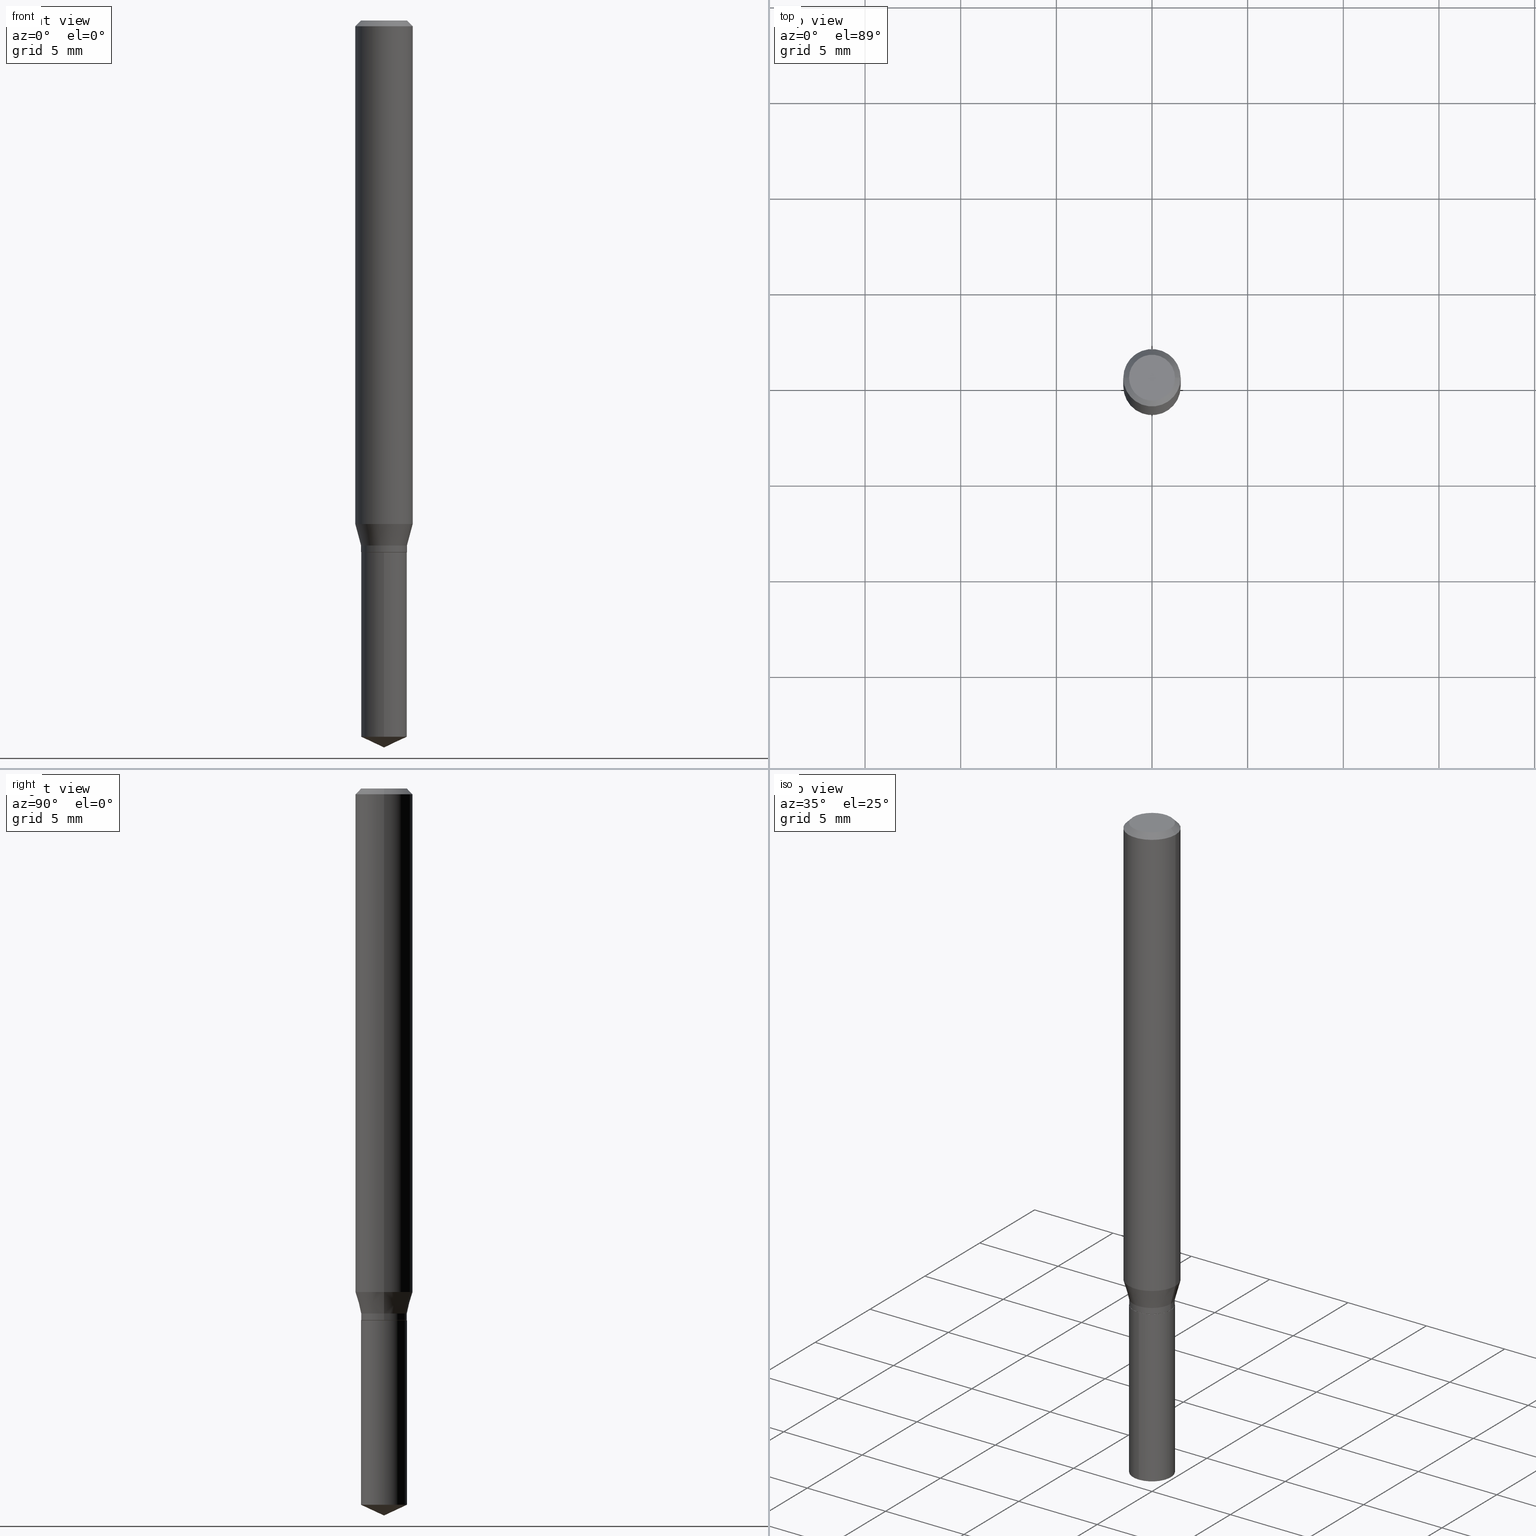
[diagram: canonical four-view strip — front | top / right | iso, engineering-drawing reading convention]
A machine part, canonical four-view strip (front | top / right | iso — engineering-drawing reading convention). The complete STEP part file that produces these views, byte-faithful:
ISO-10303-21;
HEADER;
FILE_DESCRIPTION (( 'STEP AP203' ),
    '1' );
FILE_NAME ('08202.STEP',
    '2024-04-24T13:46:53',
    ( '' ),
    ( '' ),
    'SwSTEP 2.0',
    'SolidWorks 2023',
    '' );
FILE_SCHEMA (( 'CONFIG_CONTROL_DESIGN' ));
ENDSEC;

DATA;
#1 = DIRECTION ( 'NONE',  ( 1.000000000000000000, -6.982962677686266711E-15, 0.000000000000000000 ) ) ;
#2 = CC_DESIGN_DATE_AND_TIME_ASSIGNMENT ( #258, #218, ( #117 ) ) ;
#3 = LOCAL_TIME ( 9, 46, 53.00000000000000000, #107 ) ;
#4 = DIRECTION ( 'NONE',  ( -2.445468806185136597E-29, 3.491481338843145583E-15, 1.000000000000000000 ) ) ;
#5 = EDGE_CURVE ( 'NONE', #385, #406, #39, .T. ) ;
#6 = CIRCLE ( 'NONE', #380, 0.05904999999999999832 ) ;
#7 = AXIS2_PLACEMENT_3D ( 'NONE', #478, #299, #243 ) ;
#8 = ORIENTED_EDGE ( 'NONE', *, *, #350, .T. ) ;
#9 = LINE ( 'NONE', #457, #37 ) ;
#10 = EDGE_CURVE ( 'NONE', #398, #271, #461, .T. ) ;
#11 = CC_DESIGN_PERSON_AND_ORGANIZATION_ASSIGNMENT ( #302, #443, ( #186 ) ) ;
#12 = CLOSED_SHELL ( 'NONE', ( #379, #303, #474, #259, #272, #81, #416, #339, #215, #161, #146, #181 ) ) ;
#13 = CIRCLE ( 'NONE', #347, 0.04724999999999999339 ) ;
#14 = DIMENSIONAL_EXPONENTS ( 1.000000000000000000, 0.000000000000000000, 0.000000000000000000, 0.000000000000000000, 0.000000000000000000, 0.000000000000000000, 0.000000000000000000 ) ;
#15 = EDGE_LOOP ( 'NONE', ( #438, #351, #191, #165 ) ) ;
#16 = DIRECTION ( 'NONE',  ( -2.445468806185136877E-29, 3.491481338843145188E-15, 1.000000000000000000 ) ) ;
#17 = VERTEX_POINT ( 'NONE', #250 ) ;
#18 = PERSON ( 'UNSPECIFIED', 'UNSPECIFIED', 'UNSPECIFIED', ('UNSPECIFIED'), ('UNSPECIFIED'), ('UNSPECIFIED') ) ;
#19 = DIRECTION ( 'NONE',  ( -0.2588190451025214611, 5.211531920934550253E-15, 0.9659258262890679791 ) ) ;
#20 = CARTESIAN_POINT ( 'NONE',  ( 0.000000000000000000, 0.000000000000000000, 0.000000000000000000 ) ) ;
#21 = EDGE_CURVE ( 'NONE', #390, #95, #255, .T. ) ;
#22 = CYLINDRICAL_SURFACE ( 'NONE', #301, 0.05905000000000006771 ) ;
#23 = DIRECTION ( 'NONE',  ( 2.445468806185136597E-29, -3.491481338843145583E-15, -1.000000000000000000 ) ) ;
#24 = DIRECTION ( 'NONE',  ( -2.445358326776455510E-29, 3.491639551644474585E-15, 1.000000000000000000 ) ) ;
#25 = CARTESIAN_POINT ( 'NONE',  ( 2.676565608369631794E-29, -3.821426325363822773E-15, -1.094499999999999806 ) ) ;
#26 = COORDINATED_UNIVERSAL_TIME_OFFSET ( 5, 0, .BEHIND. ) ;
#27 = EDGE_LOOP ( 'NONE', ( #424, #52 ) ) ;
#28 = CARTESIAN_POINT ( 'NONE',  ( 0.04724999999999997952, -4.101792276872925713E-15, -1.080300000000000038 ) ) ;
#29 = DIRECTION ( 'NONE',  ( 1.000000000000000000, -6.982962677686269077E-15, 0.000000000000000000 ) ) ;
#30 = LINE ( 'NONE', #283, #410 ) ;
#31 = CARTESIAN_POINT ( 'NONE',  ( 2.675342873966538993E-29, -3.819680584694400481E-15, -1.093999999999999861 ) ) ;
#32 = AXIS2_PLACEMENT_3D ( 'NONE', #389, #23, #119 ) ;
#33 = VECTOR ( 'NONE', #439, 39.37007874015748854 ) ;
#34 = ORIENTED_EDGE ( 'NONE', *, *, #103, .T. ) ;
#35 = CARTESIAN_POINT ( 'NONE',  ( -0.04674999999999999295, -3.489247596395975839E-15, -1.094499999999999806 ) ) ;
#36 = CARTESIAN_POINT ( 'NONE',  ( 0.04674999999999999295, -4.147879830545655774E-15, -1.094499999999999806 ) ) ;
#37 = VECTOR ( 'NONE', #151, 39.37007874015748143 ) ;
#38 = DIRECTION ( 'NONE',  ( -2.445358326776455790E-29, 3.491639551644474585E-15, 1.000000000000000000 ) ) ;
#39 = CIRCLE ( 'NONE', #104, 0.04724999999999998646 ) ;
#40 = AXIS2_PLACEMENT_3D ( 'NONE', #273, #312, #82 ) ;
#41 = CALENDAR_DATE ( 2024, 24, 4 ) ;
#42 = ORIENTED_EDGE ( 'NONE', *, *, #222, .T. ) ;
#43 = EDGE_CURVE ( 'NONE', #242, #265, #202, .T. ) ;
#44 = EDGE_CURVE ( 'NONE', #17, #242, #376, .T. ) ;
#45 = CARTESIAN_POINT ( 'NONE',  ( 2.676565608369631794E-29, -3.821426325363822773E-15, -1.094499999999999806 ) ) ;
#46 = DIRECTION ( 'NONE',  ( -6.982962677686265922E-15, -1.000000000000000000, 5.781688875479922944E-15 ) ) ;
#47 = EDGE_LOOP ( 'NONE', ( #486, #209, #100, #293 ) ) ;
#48 = LENGTH_MEASURE_WITH_UNIT ( LENGTH_MEASURE( 0.02539999999999999897 ), #392 );
#49 = DIRECTION ( 'NONE',  ( 2.445468806185136597E-29, -3.491481338843145583E-15, -1.000000000000000000 ) ) ;
#50 = VERTEX_POINT ( 'NONE', #345 ) ;
#51 = DIRECTION ( 'NONE',  ( -2.445468806185136597E-29, 3.491481338843145583E-15, 1.000000000000000000 ) ) ;
#52 = ORIENTED_EDGE ( 'NONE', *, *, #21, .F. ) ;
#53 = AXIS2_PLACEMENT_3D ( 'NONE', #356, #207, #29 ) ;
#54 = CC_DESIGN_APPROVAL ( #150, ( #185 ) ) ;
#55 = FACE_OUTER_BOUND ( 'NONE', #248, .T. ) ;
#56 = DIRECTION ( 'NONE',  ( 1.000000000000000000, -6.982962677686267499E-15, 0.000000000000000000 ) ) ;
#57 =( NAMED_UNIT ( * ) PLANE_ANGLE_UNIT ( ) SI_UNIT ( $, .RADIAN. ) );
#58 = CARTESIAN_POINT ( 'NONE',  ( 3.658500592690254185E-29, -5.223841933215297403E-15, -1.496099999999999985 ) ) ;
#59 = CARTESIAN_POINT ( 'NONE',  ( 2.676565608369631794E-29, -3.821426325363822773E-15, -1.094499999999999806 ) ) ;
#60 = EDGE_CURVE ( 'NONE', #390, #385, #268, .T. ) ;
#61 = ORIENTED_EDGE ( 'NONE', *, *, #407, .F. ) ;
#62 = AXIS2_PLACEMENT_3D ( 'NONE', #158, #156, #201 ) ;
#63 = AXIS2_PLACEMENT_3D ( 'NONE', #25, #402, #437 ) ;
#64 = CC_DESIGN_DATE_AND_TIME_ASSIGNMENT ( #145, #182, ( #99 ) ) ;
#65 = APPLICATION_PROTOCOL_DEFINITION ( 'international standard', 'config_control_design', 1994, #102 ) ;
#66 = PERSON_AND_ORGANIZATION ( #18, #247 ) ;
#67 = DIRECTION ( 'NONE',  ( 0.000000000000000000, 0.000000000000000000, 1.000000000000000000 ) ) ;
#68 = FACE_OUTER_BOUND ( 'NONE', #269, .T. ) ;
#69 = FACE_OUTER_BOUND ( 'NONE', #159, .T. ) ;
#70 = CYLINDRICAL_SURFACE ( 'NONE', #369, 0.04724999999999998646 ) ;
#71 = CONICAL_SURFACE ( 'NONE', #261, 84.42940631927483253, 1.134464013796318227 ) ;
#72 = CC_DESIGN_APPROVAL ( #297, ( #99 ) ) ;
#73 = MANIFOLD_SOLID_BREP ( 'Body-Move/Copy2[1]', #155 ) ;
#74 = ORIENTED_EDGE ( 'NONE', *, *, #85, .F. ) ;
#75 = DIRECTION ( 'NONE',  ( 1.000000000000000000, -6.982962677686266711E-15, 0.000000000000000000 ) ) ;
#76 = DIRECTION ( 'NONE',  ( 1.000000000000000000, -6.982962677686266711E-15, 4.876176775795935793E-29 ) ) ;
#77 = EDGE_CURVE ( 'NONE', #176, #354, #6, .T. ) ;
#78 = EDGE_LOOP ( 'NONE', ( #323, #490, #321, #318 ) ) ;
#79 = DIRECTION ( 'NONE',  ( -2.445468806185136597E-29, 3.491481338843145583E-15, 1.000000000000000000 ) ) ;
#80 = ORIENTED_EDGE ( 'NONE', *, *, #101, .F. ) ;
#81 = ADVANCED_FACE ( 'NONE', ( #69 ), #70, .T. ) ;
#82 = DIRECTION ( 'NONE',  ( 1.000000000000000000, -6.982962677686266711E-15, 0.000000000000000000 ) ) ;
#83 = DIRECTION ( 'NONE',  ( 2.438088387897960049E-29, -3.491481338843145188E-15, -1.000000000000000000 ) ) ;
#84 = ORIENTED_EDGE ( 'NONE', *, *, #419, .F. ) ;
#85 = EDGE_CURVE ( 'NONE', #95, #406, #189, .T. ) ;
#86 = DIRECTION ( 'NONE',  ( 1.000000000000000000, -6.982962677686266711E-15, 0.000000000000000000 ) ) ;
#87 = AXIS2_PLACEMENT_3D ( 'NONE', #162, #285, #317 ) ;
#88 = DIRECTION ( 'NONE',  ( -2.445358326776455510E-29, 3.491639551644474585E-15, 1.000000000000000000 ) ) ;
#89 = CARTESIAN_POINT ( 'NONE',  ( 2.675342873966538993E-29, -3.819680584694400481E-15, -1.093999999999999861 ) ) ;
#90 = DATE_AND_TIME ( #367, #441 ) ;
#91 = VERTEX_POINT ( 'NONE', #217 ) ;
#92 = CARTESIAN_POINT ( 'NONE',  ( 2.676565608369631794E-29, -3.821426325363822773E-15, -1.094499999999999806 ) ) ;
#93 = CARTESIAN_POINT ( 'NONE',  ( 2.676565608369631794E-29, -3.821426325363822773E-15, -1.094499999999999806 ) ) ;
#94 = EDGE_CURVE ( 'NONE', #240, #17, #13, .T. ) ;
#95 = VERTEX_POINT ( 'NONE', #36 ) ;
#96 = LINE ( 'NONE', #362, #164 ) ;
#97 = VERTEX_POINT ( 'NONE', #178 ) ;
#98 = CONICAL_SURFACE ( 'NONE', #32, 0.05904999999999999832, 0.7853981633974450594 ) ;
#99 = SECURITY_CLASSIFICATION ( '', '', #374 ) ;
#100 = ORIENTED_EDGE ( 'NONE', *, *, #85, .T. ) ;
#101 = EDGE_CURVE ( 'NONE', #91, #176, #180, .T. ) ;
#102 = APPLICATION_CONTEXT ( 'configuration controlled 3d designs of mechanical parts and assemblies' ) ;
#103 = EDGE_CURVE ( 'NONE', #97, #354, #452, .T. ) ;
#104 = AXIS2_PLACEMENT_3D ( 'NONE', #31, #370, #56 ) ;
#105 = CARTESIAN_POINT ( 'NONE',  ( 3.658744552762151624E-29, -5.223495605393188568E-15, -1.496099999999999985 ) ) ;
#106 = DIRECTION ( 'NONE',  ( -6.982962677686265922E-15, -1.000000000000000000, 2.890844437739961472E-15 ) ) ;
#107 = COORDINATED_UNIVERSAL_TIME_OFFSET ( 5, 0, .BEHIND. ) ;
#108 = CARTESIAN_POINT ( 'NONE',  ( -0.05905000000000006771, 4.195754854663396409E-16, -2.904631170795525045E-30 ) ) ;
#109 = APPROVAL_PERSON_ORGANIZATION ( #187, #297, #120 ) ;
#110 = DIRECTION ( 'NONE',  ( 2.445358326776454949E-29, -3.491639551644474585E-15, -1.000000000000000000 ) ) ;
#111 = ORIENTED_EDGE ( 'NONE', *, *, #130, .T. ) ;
#112 = CIRCLE ( 'NONE', #440, 0.04724999999999998646 ) ;
#113 = CC_DESIGN_APPROVAL ( #138, ( #117 ) ) ;
#114 = ORIENTED_EDGE ( 'NONE', *, *, #350, .F. ) ;
#115 = CARTESIAN_POINT ( 'NONE',  ( 0.04724999999999998646, -4.149625571215076488E-15, -1.093999999999999861 ) ) ;
#116 = DIRECTION ( 'NONE',  ( -2.445358326776455510E-29, 3.491639551644474585E-15, 1.000000000000000000 ) ) ;
#117 = PRODUCT_DEFINITION ( 'UNKNOWN', '', #185, #263 ) ;
#118 = CARTESIAN_POINT ( 'NONE',  ( 2.676565608369631794E-29, -3.821426325363822773E-15, -1.094499999999999806 ) ) ;
#119 = DIRECTION ( 'NONE',  ( -1.000000000000000000, 6.982962677686266711E-15, 0.000000000000000000 ) ) ;
#120 = APPROVAL_ROLE ( '' ) ;
#121 = FACE_OUTER_BOUND ( 'NONE', #211, .T. ) ;
#122 = VECTOR ( 'NONE', #471, 39.37007874015748143 ) ;
#123 = DIRECTION ( 'NONE',  ( -2.445468806185136597E-29, 3.491481338843145583E-15, 1.000000000000000000 ) ) ;
#124 = AXIS2_PLACEMENT_3D ( 'NONE', #236, #167, #257 ) ;
#125 = EDGE_LOOP ( 'NONE', ( #341, #175, #468, #482 ) ) ;
#126 = CARTESIAN_POINT ( 'NONE',  ( 2.641839951321803071E-29, -3.771847290352249705E-15, -1.080300000000000038 ) ) ;
#127 = DIRECTION ( 'NONE',  ( -2.445358326776455510E-29, 3.491639551644474585E-15, 1.000000000000000000 ) ) ;
#128 = ORIENTED_EDGE ( 'NONE', *, *, #103, .F. ) ;
#129 = CARTESIAN_POINT ( 'NONE',  ( 3.604742842283059142E-29, -5.146737346403543071E-15, -1.474066963152176557 ) ) ;
#130 = EDGE_CURVE ( 'NONE', #271, #91, #382, .T. ) ;
#131 = DIRECTION ( 'NONE',  ( -6.982962677686267499E-15, -1.000000000000000000, 3.520397390770433360E-15 ) ) ;
#132 = ORIENTED_EDGE ( 'NONE', *, *, #333, .T. ) ;
#133 = CARTESIAN_POINT ( 'NONE',  ( 0.000000000000000000, 0.000000000000000000, 0.000000000000000000 ) ) ;
#134 = DIRECTION ( 'NONE',  ( 1.000000000000000000, -6.982962677686266711E-15, 4.876176775795935793E-29 ) ) ;
#135 = ORIENTED_EDGE ( 'NONE', *, *, #94, .F. ) ;
#136 = CONICAL_SURFACE ( 'NONE', #226, 0.04724999999999997952, 0.2617993877991501850 ) ;
#137 = ORIENTED_EDGE ( 'NONE', *, *, #5, .T. ) ;
#138 = APPROVAL ( #375, 'UNSPECIFIED' ) ;
#139 = FACE_OUTER_BOUND ( 'NONE', #188, .T. ) ;
#140 = DIRECTION ( 'NONE',  ( -0.7071067811865173747, 7.493145998870245297E-15, 0.7071067811865776598 ) ) ;
#141 = VECTOR ( 'NONE', #393, 39.37007874015748143 ) ;
#142 = DIRECTION ( 'NONE',  ( 1.000000000000000000, -6.982962677686266711E-15, 4.876176775795936353E-29 ) ) ;
#143 = CC_DESIGN_PERSON_AND_ORGANIZATION_ASSIGNMENT ( #458, #208, ( #185 ) ) ;
#144 = PERSON_AND_ORGANIZATION ( #18, #247 ) ;
#145 = DATE_AND_TIME ( #41, #157 ) ;
#146 = ADVANCED_FACE ( 'NONE', ( #241 ), #234, .F. ) ;
#147 = CONICAL_SURFACE ( 'NONE', #266, 0.04674999999999999295, 0.7853981633974056464 ) ;
#148 = CONICAL_SURFACE ( 'NONE', #221, 0.04674999999999999295, 0.7853981633974056464 ) ;
#149 = CALENDAR_DATE ( 2024, 24, 4 ) ;
#150 = APPROVAL ( #445, 'UNSPECIFIED' ) ;
#151 = DIRECTION ( 'NONE',  ( 0.7071067811865452413, -7.319954787623248157E-15, -0.7071067811865497932 ) ) ;
#152 = CARTESIAN_POINT ( 'NONE',  ( 3.604742842283059142E-29, -5.146737346403543071E-15, -1.474066963152176557 ) ) ;
#153 = DATE_AND_TIME ( #275, #292 ) ;
#154 = ORIENTED_EDGE ( 'NONE', *, *, #10, .F. ) ;
#155 = CLOSED_SHELL ( 'NONE', ( #420, #465, #311, #233, #378 ) ) ;
#156 = DIRECTION ( 'NONE',  ( -2.445468806185136597E-29, 3.491481338843145583E-15, 1.000000000000000000 ) ) ;
#157 = LOCAL_TIME ( 9, 46, 53.00000000000000000, #418 ) ;
#158 = CARTESIAN_POINT ( 'NONE',  ( 8.265746106709734507E-48, -1.180129479067563789E-33, -3.380025165646692144E-19 ) ) ;
#159 = EDGE_LOOP ( 'NONE', ( #200, #137, #132, #154 ) ) ;
#160 = DIRECTION ( 'NONE',  ( -1.000000000000000000, 6.982962677686265922E-15, -4.876176775795935793E-29 ) ) ;
#161 = ADVANCED_FACE ( 'NONE', ( #237 ), #195, .F. ) ;
#162 = CARTESIAN_POINT ( 'NONE',  ( 2.676565608369631794E-29, -3.821426325363822773E-15, -1.094499999999999806 ) ) ;
#163 = AXIS2_PLACEMENT_3D ( 'NONE', #349, #83, #160 ) ;
#164 = VECTOR ( 'NONE', #170, 39.37007874015748143 ) ;
#165 = ORIENTED_EDGE ( 'NONE', *, *, #333, .F. ) ;
#166 = ORIENTED_EDGE ( 'NONE', *, *, #366, .T. ) ;
#167 = DIRECTION ( 'NONE',  ( -2.445468806185136597E-29, 3.491481338843145583E-15, 1.000000000000000000 ) ) ;
#168 = CARTESIAN_POINT ( 'NONE',  ( 0.000000000000000000, 0.000000000000000000, 0.000000000000000000 ) ) ;
#169 = EDGE_CURVE ( 'NONE', #385, #398, #401, .T. ) ;
#170 = DIRECTION ( 'NONE',  ( -6.328713451373382000E-15, -0.9063077870366501587, 0.4226182617406989972 ) ) ;
#171 = PERSON_AND_ORGANIZATION_ROLE ( 'creator' ) ;
#172 = ORIENTED_EDGE ( 'NONE', *, *, #10, .T. ) ;
#173 = CYLINDRICAL_SURFACE ( 'NONE', #377, 0.05905000000000006771 ) ;
#174 = APPROVAL_ROLE ( '' ) ;
#175 = ORIENTED_EDGE ( 'NONE', *, *, #469, .F. ) ;
#176 = VERTEX_POINT ( 'NONE', #355 ) ;
#177 = APPLICATION_PROTOCOL_DEFINITION ( 'international standard', 'config_control_design', 1994, #431 ) ;
#178 = CARTESIAN_POINT ( 'NONE',  ( -0.05905000000000013016, -3.198513253033061898E-15, -1.036261800470686723 ) ) ;
#179 = CIRCLE ( 'NONE', #267, 0.04724000000000000421 ) ;
#180 = LINE ( 'NONE', #444, #338 ) ;
#181 = ADVANCED_FACE ( 'NONE', ( #274 ), #147, .T. ) ;
#182 = DATE_TIME_ROLE ( 'classification_date' ) ;
#183 = CONICAL_SURFACE ( 'NONE', #473, 84.42940631927483253, 1.134464013796318227 ) ;
#184 = CARTESIAN_POINT ( 'NONE',  ( -0.04724999999999997952, -3.460032494876678049E-15, -1.080300000000000038 ) ) ;
#185 = PRODUCT_DEFINITION_FORMATION_WITH_SPECIFIED_SOURCE ( 'ANY', '', #186, .NOT_KNOWN. ) ;
#186 = PRODUCT ( '08202', '08202', '', ( #295 ) ) ;
#187 = PERSON_AND_ORGANIZATION ( #18, #247 ) ;
#188 = EDGE_LOOP ( 'NONE', ( #404, #235, #344, #488 ) ) ;
#189 = LINE ( 'NONE', #296, #192 ) ;
#190 = DIRECTION ( 'NONE',  ( -6.982962677686265922E-15, -1.000000000000000000, 5.781688875479922944E-15 ) ) ;
#191 = ORIENTED_EDGE ( 'NONE', *, *, #449, .F. ) ;
#192 = VECTOR ( 'NONE', #214, 39.37007874015748143 ) ;
#193 = APPROVAL_PERSON_ORGANIZATION ( #415, #150, #174 ) ;
#194 = ORIENTED_EDGE ( 'NONE', *, *, #44, .F. ) ;
#195 = PLANE ( 'NONE',  #163 ) ;
#196 = EDGE_CURVE ( 'NONE', #50, #427, #329, .T. ) ;
#197 = ORIENTED_EDGE ( 'NONE', *, *, #469, .T. ) ;
#198 = DIRECTION ( 'NONE',  ( -2.445358326776455510E-29, 3.491639551644474585E-15, 1.000000000000000000 ) ) ;
#199 = CARTESIAN_POINT ( 'NONE',  ( 0.04724999999999997952, -4.101792276872925713E-15, -1.080300000000000038 ) ) ;
#200 = ORIENTED_EDGE ( 'NONE', *, *, #169, .F. ) ;
#201 = DIRECTION ( 'NONE',  ( 1.000000000000000000, -6.982962677686266711E-15, 4.876185090822587894E-29 ) ) ;
#202 = CIRCLE ( 'NONE', #289, 0.04724999999999999339 ) ;
#203 = DIRECTION ( 'NONE',  ( 1.000000000000000000, -6.982962677686265133E-15, 0.000000000000000000 ) ) ;
#204 = LOCAL_TIME ( 9, 46, 53.00000000000000000, #456 ) ;
#205 = ORIENTED_EDGE ( 'NONE', *, *, #251, .T. ) ;
#206 = CARTESIAN_POINT ( 'NONE',  ( 2.676565608369631794E-29, -3.821426325363822773E-15, -1.094499999999999806 ) ) ;
#207 = DIRECTION ( 'NONE',  ( -2.445468806185136597E-29, 3.491481338843145583E-15, 1.000000000000000000 ) ) ;
#208 = PERSON_AND_ORGANIZATION_ROLE ( 'design_supplier' ) ;
#209 = ORIENTED_EDGE ( 'NONE', *, *, #21, .T. ) ;
#210 = AXIS2_PLACEMENT_3D ( 'NONE', #405, #49, #252 ) ;
#211 = EDGE_LOOP ( 'NONE', ( #466, #205, #114, #253 ) ) ;
#212 = DIRECTION ( 'NONE',  ( -2.445468806185136597E-29, 3.491481338843145583E-15, 1.000000000000000000 ) ) ;
#213 = PERSON_AND_ORGANIZATION_ROLE ( 'creator' ) ;
#214 = DIRECTION ( 'NONE',  ( 0.7071067811865173747, -2.468850131081940727E-15, 0.7071067811865776598 ) ) ;
#215 = ADVANCED_FACE ( 'NONE', ( #319 ), #98, .T. ) ;
#216 = PERSON_AND_ORGANIZATION ( #18, #247 ) ;
#217 = CARTESIAN_POINT ( 'NONE',  ( 0.05905000000000013016, -4.030432684616777494E-15, -1.036261800470686723 ) ) ;
#218 = DATE_TIME_ROLE ( 'creation_date' ) ;
#219 = VECTOR ( 'NONE', #19, 39.37007874015748143 ) ;
#220 = VECTOR ( 'NONE', #464, 39.37007874015748143 ) ;
#221 = AXIS2_PLACEMENT_3D ( 'NONE', #118, #79, #75 ) ;
#222 = EDGE_CURVE ( 'NONE', #17, #240, #316, .T. ) ;
#223 = DIRECTION ( 'NONE',  ( 1.000000000000000000, -6.982962677686269077E-15, 0.000000000000000000 ) ) ;
#224 = ORIENTED_EDGE ( 'NONE', *, *, #222, .F. ) ;
#225 = AXIS2_PLACEMENT_3D ( 'NONE', #126, #279, #282 ) ;
#226 = AXIS2_PLACEMENT_3D ( 'NONE', #230, #430, #223 ) ;
#227 = ORIENTED_EDGE ( 'NONE', *, *, #264, .T. ) ;
#228 = DIRECTION ( 'NONE',  ( -2.445468806185136597E-29, 3.491481338843145583E-15, 1.000000000000000000 ) ) ;
#229 = CC_DESIGN_PERSON_AND_ORGANIZATION_ASSIGNMENT ( #144, #305, ( #99 ) ) ;
#230 = CARTESIAN_POINT ( 'NONE',  ( 2.641839951321803071E-29, -3.771847290352249705E-15, -1.080300000000000038 ) ) ;
#231 = CYLINDRICAL_SURFACE ( 'NONE', #87, 0.04724999999999999339 ) ;
#232 = ORIENTED_EDGE ( 'NONE', *, *, #276, .T. ) ;
#233 = ADVANCED_FACE ( 'NONE', ( #55 ), #231, .T. ) ;
#234 = PLANE ( 'NONE',  #422 ) ;
#235 = ORIENTED_EDGE ( 'NONE', *, *, #44, .T. ) ;
#236 = CARTESIAN_POINT ( 'NONE',  ( 2.641839951321803071E-29, -3.771847290352249705E-15, -1.080300000000000038 ) ) ;
#237 = FACE_OUTER_BOUND ( 'NONE', #477, .T. ) ;
#238 = CC_DESIGN_PERSON_AND_ORGANIZATION_ASSIGNMENT ( #66, #213, ( #117 ) ) ;
#239 = LINE ( 'NONE', #294, #141 ) ;
#240 = VERTEX_POINT ( 'NONE', #352 ) ;
#241 = FACE_OUTER_BOUND ( 'NONE', #27, .T. ) ;
#242 = VERTEX_POINT ( 'NONE', #475 ) ;
#243 = DIRECTION ( 'NONE',  ( 1.000000000000000000, -6.982962677686265133E-15, 0.000000000000000000 ) ) ;
#244 = DIRECTION ( 'NONE',  ( -2.445468806185136597E-29, 3.491481338843145583E-15, 1.000000000000000000 ) ) ;
#245 = VECTOR ( 'NONE', #140, 39.37007874015748143 ) ;
#246 = PERSON_AND_ORGANIZATION ( #18, #247 ) ;
#247 = ORGANIZATION ( 'UNSPECIFIED', 'UNSPECIFIED', '' ) ;
#248 = EDGE_LOOP ( 'NONE', ( #194, #42, #232, #480 ) ) ;
#249 =( CONVERSION_BASED_UNIT ( 'INCH', #48 ) LENGTH_UNIT ( ) NAMED_UNIT ( #14 ) );
#250 = CARTESIAN_POINT ( 'NONE',  ( 3.357314426466831841E-16, 0.04724999999999483086, -1.474066963152176779 ) ) ;
#251 = EDGE_CURVE ( 'NONE', #398, #97, #310, .T. ) ;
#252 = DIRECTION ( 'NONE',  ( -1.000000000000000000, 6.982962677686266711E-15, 0.000000000000000000 ) ) ;
#253 = ORIENTED_EDGE ( 'NONE', *, *, #130, .F. ) ;
#254 = EDGE_CURVE ( 'NONE', #427, #354, #313, .T. ) ;
#255 = CIRCLE ( 'NONE', #298, 0.04674999999999999295 ) ;
#256 = DATE_AND_TIME ( #149, #204 ) ;
#257 = DIRECTION ( 'NONE',  ( 1.000000000000000000, -6.982962677686269077E-15, 0.000000000000000000 ) ) ;
#258 = DATE_AND_TIME ( #334, #3 ) ;
#259 = ADVANCED_FACE ( 'NONE', ( #121 ), #335, .T. ) ;
#260 = VECTOR ( 'NONE', #342, 39.37007874015748143 ) ;
#261 = AXIS2_PLACEMENT_3D ( 'NONE', #412, #198, #372 ) ;
#262 = EDGE_CURVE ( 'NONE', #406, #385, #112, .T. ) ;
#263 = DESIGN_CONTEXT ( 'detailed design', #102, 'design' ) ;
#264 = EDGE_CURVE ( 'NONE', #265, #242, #487, .T. ) ;
#265 = VERTEX_POINT ( 'NONE', #436 ) ;
#266 = AXIS2_PLACEMENT_3D ( 'NONE', #206, #426, #86 ) ;
#267 = AXIS2_PLACEMENT_3D ( 'NONE', #481, #4, #328 ) ;
#268 = LINE ( 'NONE', #35, #245 ) ;
#269 = EDGE_LOOP ( 'NONE', ( #8, #34, #332, #80 ) ) ;
#270 = DIRECTION ( 'NONE',  ( 1.000000000000000000, -6.982962677686265922E-15, 4.876176775795935793E-29 ) ) ;
#271 = VERTEX_POINT ( 'NONE', #28 ) ;
#272 = ADVANCED_FACE ( 'NONE', ( #483 ), #361, .T. ) ;
#273 = CARTESIAN_POINT ( 'NONE',  ( 2.888098660104664642E-31, -4.123439461173780879E-17, -0.01181000000000007565 ) ) ;
#274 = FACE_OUTER_BOUND ( 'NONE', #47, .T. ) ;
#275 = CALENDAR_DATE ( 2024, 24, 4 ) ;
#276 = EDGE_CURVE ( 'NONE', #240, #265, #239, .T. ) ;
#277 = VECTOR ( 'NONE', #16, 39.37007874015748143 ) ;
#278 =( GEOMETRIC_REPRESENTATION_CONTEXT ( 3 ) GLOBAL_UNCERTAINTY_ASSIGNED_CONTEXT ( ( #331 ) ) GLOBAL_UNIT_ASSIGNED_CONTEXT ( ( #249, #57, #413 ) ) REPRESENTATION_CONTEXT ( 'NONE', 'WORKASPACE' ) );
#279 = DIRECTION ( 'NONE',  ( -2.445468806185136597E-29, 3.491481338843145583E-15, 1.000000000000000000 ) ) ;
#280 = COORDINATED_UNIVERSAL_TIME_OFFSET ( 5, 0, .BEHIND. ) ;
#281 = ORIENTED_EDGE ( 'NONE', *, *, #360, .T. ) ;
#282 = DIRECTION ( 'NONE',  ( 1.000000000000000000, -6.982962677686269077E-15, 0.000000000000000000 ) ) ;
#283 = CARTESIAN_POINT ( 'NONE',  ( 0.04724999999999998646, -3.299449865206760074E-16, 2.303993526563579130E-30 ) ) ;
#284 = EDGE_LOOP ( 'NONE', ( #359, #166, #224 ) ) ;
#285 = DIRECTION ( 'NONE',  ( -2.445358326776455510E-29, 3.491639551644474585E-15, 1.000000000000000000 ) ) ;
#286 = DIRECTION ( 'NONE',  ( -2.445468806185136877E-29, 3.491481338843145188E-15, 1.000000000000000000 ) ) ;
#287 = ORIENTED_EDGE ( 'NONE', *, *, #419, .T. ) ;
#288 = DIRECTION ( 'NONE',  ( -2.445468806185136597E-29, 3.491481338843145583E-15, 1.000000000000000000 ) ) ;
#289 = AXIS2_PLACEMENT_3D ( 'NONE', #448, #450, #106 ) ;
#290 = CIRCLE ( 'NONE', #7, 0.05905000000000013016 ) ;
#291 = PLANE ( 'NONE',  #462 ) ;
#292 = LOCAL_TIME ( 9, 46, 53.00000000000000000, #280 ) ;
#293 = ORIENTED_EDGE ( 'NONE', *, *, #5, .F. ) ;
#294 = CARTESIAN_POINT ( 'NONE',  ( -3.299449865206492354E-16, -0.04725000000000382366, -1.094499999999999806 ) ) ;
#295 = MECHANICAL_CONTEXT ( 'NONE', #431, 'mechanical' ) ;
#296 = CARTESIAN_POINT ( 'NONE',  ( 0.04674999999999999295, -4.147879830545655774E-15, -1.094499999999999806 ) ) ;
#297 = APPROVAL ( #343, 'UNSPECIFIED' ) ;
#298 = AXIS2_PLACEMENT_3D ( 'NONE', #59, #212, #1 ) ;
#299 = DIRECTION ( 'NONE',  ( -2.445468806185136597E-29, 3.491481338843145583E-15, 1.000000000000000000 ) ) ;
#300 = DIRECTION ( 'NONE',  ( 1.000000000000000000, -6.982962677686266711E-15, 0.000000000000000000 ) ) ;
#301 = AXIS2_PLACEMENT_3D ( 'NONE', #133, #288, #142 ) ;
#302 = PERSON_AND_ORGANIZATION ( #18, #247 ) ;
#303 = ADVANCED_FACE ( 'NONE', ( #320 ), #454, .T. ) ;
#304 = DIRECTION ( 'NONE',  ( -2.445468806185136877E-29, 3.491481338843145188E-15, 1.000000000000000000 ) ) ;
#305 = PERSON_AND_ORGANIZATION_ROLE ( 'classification_officer' ) ;
#306 = VECTOR ( 'NONE', #38, 39.37007874015748143 ) ;
#307 = FACE_OUTER_BOUND ( 'NONE', #330, .T. ) ;
#308 = ORIENTED_EDGE ( 'NONE', *, *, #435, .T. ) ;
#309 = APPROVAL_PERSON_ORGANIZATION ( #216, #138, #365 ) ;
#310 = LINE ( 'NONE', #387, #219 ) ;
#311 = ADVANCED_FACE ( 'NONE', ( #476 ), #183, .T. ) ;
#312 = DIRECTION ( 'NONE',  ( -2.445468806185136597E-29, 3.491481338843145583E-15, 1.000000000000000000 ) ) ;
#313 = LINE ( 'NONE', #358, #122 ) ;
#314 = DIRECTION ( 'NONE',  ( 1.000000000000000000, -6.982962677686266711E-15, 4.876176775795936353E-29 ) ) ;
#315 = EDGE_LOOP ( 'NONE', ( #128, #287, #429, #61 ) ) ;
#316 = CIRCLE ( 'NONE', #357, 0.04724999999999999339 ) ;
#317 = DIRECTION ( 'NONE',  ( -6.982962677686265922E-15, -1.000000000000000000, 2.890844437739961472E-15 ) ) ;
#318 = ORIENTED_EDGE ( 'NONE', *, *, #254, .F. ) ;
#319 = FACE_OUTER_BOUND ( 'NONE', #125, .T. ) ;
#320 = FACE_OUTER_BOUND ( 'NONE', #78, .T. ) ;
#321 = ORIENTED_EDGE ( 'NONE', *, *, #77, .T. ) ;
#322 = CARTESIAN_POINT ( 'NONE',  ( -0.04724000000000000421, 3.504923541997677355E-16, -3.380025165670481712E-19 ) ) ;
#323 = ORIENTED_EDGE ( 'NONE', *, *, #196, .F. ) ;
#324 = DIRECTION ( 'NONE',  ( -2.445468806185136597E-29, 3.491481338843145583E-15, 1.000000000000000000 ) ) ;
#325 = CC_DESIGN_PERSON_AND_ORGANIZATION_ASSIGNMENT ( #246, #171, ( #185 ) ) ;
#326 = FACE_OUTER_BOUND ( 'NONE', #395, .T. ) ;
#327 = VERTEX_POINT ( 'NONE', #58 ) ;
#328 = DIRECTION ( 'NONE',  ( 1.000000000000000000, -6.982962677686266711E-15, 4.876185090822587894E-29 ) ) ;
#329 = CIRCLE ( 'NONE', #62, 0.04724000000000000421 ) ;
#330 = EDGE_LOOP ( 'NONE', ( #281, #409, #346, #74 ) ) ;
#331 = UNCERTAINTY_MEASURE_WITH_UNIT (LENGTH_MEASURE( 1.000000000000000082E-05 ), #249, 'distance_accuracy_value', 'NONE');
#332 = ORIENTED_EDGE ( 'NONE', *, *, #77, .F. ) ;
#333 = EDGE_CURVE ( 'NONE', #406, #271, #30, .T. ) ;
#334 = CALENDAR_DATE ( 2024, 24, 4 ) ;
#335 = CONICAL_SURFACE ( 'NONE', #225, 0.04724999999999997952, 0.2617993877991501850 ) ;
#336 = FACE_OUTER_BOUND ( 'NONE', #403, .T. ) ;
#337 = CIRCLE ( 'NONE', #63, 0.04674999999999999295 ) ;
#338 = VECTOR ( 'NONE', #304, 39.37007874015748143 ) ;
#339 = ADVANCED_FACE ( 'NONE', ( #397 ), #173, .T. ) ;
#340 = AXIS2_PLACEMENT_3D ( 'NONE', #92, #88, #447 ) ;
#341 = ORIENTED_EDGE ( 'NONE', *, *, #386, .F. ) ;
#342 = DIRECTION ( 'NONE',  ( -2.445468806185136877E-29, 3.491481338843145188E-15, 1.000000000000000000 ) ) ;
#343 = APPROVAL_STATUS ( 'not_yet_approved' ) ;
#344 = ORIENTED_EDGE ( 'NONE', *, *, #264, .F. ) ;
#345 = CARTESIAN_POINT ( 'NONE',  ( 0.04724000000000000421, -3.852183633974369345E-16, -3.380025165621689721E-19 ) ) ;
#346 = ORIENTED_EDGE ( 'NONE', *, *, #262, .F. ) ;
#347 = AXIS2_PLACEMENT_3D ( 'NONE', #152, #373, #190 ) ;
#348 = CC_DESIGN_SECURITY_CLASSIFICATION ( #99, ( #185 ) ) ;
#349 = CARTESIAN_POINT ( 'NONE',  ( 4.132873053354867254E-48, -5.900647395337818946E-34, -1.690012582823346072E-19 ) ) ;
#350 = EDGE_CURVE ( 'NONE', #91, #97, #455, .T. ) ;
#351 = ORIENTED_EDGE ( 'NONE', *, *, #169, .T. ) ;
#352 = CARTESIAN_POINT ( 'NONE',  ( -3.299449865206398677E-16, -0.04725000000000512818, -1.474066963152176113 ) ) ;
#353 = CARTESIAN_POINT ( 'NONE',  ( -9.261532836068574158E-28, 1.322424553111868898E-13, 37.87397874015748300 ) ) ;
#354 = VERTEX_POINT ( 'NONE', #442 ) ;
#355 = CARTESIAN_POINT ( 'NONE',  ( 0.05904999999999999832, -4.535783407291118600E-16, -0.01181000000000007565 ) ) ;
#356 = CARTESIAN_POINT ( 'NONE',  ( 2.641839951321803071E-29, -3.771847290352249705E-15, -1.080300000000000038 ) ) ;
#357 = AXIS2_PLACEMENT_3D ( 'NONE', #129, #116, #46 ) ;
#358 = CARTESIAN_POINT ( 'NONE',  ( -0.05904999999999999832, 3.711095515056362547E-16, -0.01181000000000007565 ) ) ;
#359 = ORIENTED_EDGE ( 'NONE', *, *, #435, .F. ) ;
#360 = EDGE_CURVE ( 'NONE', #95, #390, #337, .T. ) ;
#361 = CYLINDRICAL_SURFACE ( 'NONE', #399, 0.04724999999999998646 ) ;
#362 = CARTESIAN_POINT ( 'NONE',  ( 3.658500592690254185E-29, -5.223841933215297403E-15, -1.496099999999999985 ) ) ;
#363 = ORIENTED_EDGE ( 'NONE', *, *, #196, .T. ) ;
#364 = LINE ( 'NONE', #105, #33 ) ;
#365 = APPROVAL_ROLE ( '' ) ;
#366 = EDGE_CURVE ( 'NONE', #327, #240, #96, .T. ) ;
#367 = CALENDAR_DATE ( 2024, 24, 4 ) ;
#368 = EDGE_LOOP ( 'NONE', ( #383, #172, #111, #84 ) ) ;
#369 = AXIS2_PLACEMENT_3D ( 'NONE', #460, #228, #76 ) ;
#370 = DIRECTION ( 'NONE',  ( -2.445468806185136597E-29, 3.491481338843145583E-15, 1.000000000000000000 ) ) ;
#371 = CARTESIAN_POINT ( 'NONE',  ( 3.357314426466740136E-16, 0.04724999999999617006, -1.094500000000000028 ) ) ;
#372 = DIRECTION ( 'NONE',  ( -6.982962677686267499E-15, -1.000000000000000000, 3.520397390770433360E-15 ) ) ;
#373 = DIRECTION ( 'NONE',  ( -2.445358326776455510E-29, 3.491639551644474585E-15, 1.000000000000000000 ) ) ;
#374 = SECURITY_CLASSIFICATION_LEVEL ( 'unclassified' ) ;
#375 = APPROVAL_STATUS ( 'not_yet_approved' ) ;
#376 = LINE ( 'NONE', #371, #306 ) ;
#377 = AXIS2_PLACEMENT_3D ( 'NONE', #20, #51, #314 ) ;
#378 = ADVANCED_FACE ( 'NONE', ( #326 ), #291, .F. ) ;
#379 = ADVANCED_FACE ( 'NONE', ( #307 ), #148, .T. ) ;
#380 = AXIS2_PLACEMENT_3D ( 'NONE', #421, #414, #300 ) ;
#381 = ORIENTED_EDGE ( 'NONE', *, *, #366, .F. ) ;
#382 = LINE ( 'NONE', #199, #220 ) ;
#383 = ORIENTED_EDGE ( 'NONE', *, *, #251, .F. ) ;
#384 = CARTESIAN_POINT ( 'NONE',  ( -0.04674999999999999295, -3.486598369221864243E-15, -1.094499999999999806 ) ) ;
#385 = VERTEX_POINT ( 'NONE', #425 ) ;
#386 = EDGE_CURVE ( 'NONE', #50, #176, #9, .T. ) ;
#387 = CARTESIAN_POINT ( 'NONE',  ( -0.04724999999999997952, -3.436115847705603055E-15, -1.080300000000000038 ) ) ;
#388 = AXIS2_PLACEMENT_3D ( 'NONE', #93, #24, #479 ) ;
#389 = CARTESIAN_POINT ( 'NONE',  ( 2.888098660104664642E-31, -4.123439461173780879E-17, -0.01181000000000007565 ) ) ;
#390 = VERTEX_POINT ( 'NONE', #384 ) ;
#391 = ADVANCED_BREP_SHAPE_REPRESENTATION ( '08202', ( #73, #408, #411 ), #278 ) ;
#392 =( LENGTH_UNIT ( ) NAMED_UNIT ( * ) SI_UNIT ( $, .METRE. ) );
#393 = DIRECTION ( 'NONE',  ( -2.445358326776455790E-29, 3.491639551644474585E-15, 1.000000000000000000 ) ) ;
#394 = SHAPE_DEFINITION_REPRESENTATION ( #417, #391 ) ;
#395 = EDGE_LOOP ( 'NONE', ( #227, #459 ) ) ;
#396 = CARTESIAN_POINT ( 'NONE',  ( -0.04724999999999998646, 3.357314426466472416E-16, -2.324196830145442465E-30 ) ) ;
#397 = FACE_OUTER_BOUND ( 'NONE', #315, .T. ) ;
#398 = VERTEX_POINT ( 'NONE', #184 ) ;
#399 = AXIS2_PLACEMENT_3D ( 'NONE', #168, #324, #134 ) ;
#400 = CIRCLE ( 'NONE', #40, 0.05904999999999999832 ) ;
#401 = LINE ( 'NONE', #396, #277 ) ;
#402 = DIRECTION ( 'NONE',  ( -2.445468806185136597E-29, 3.491481338843145583E-15, 1.000000000000000000 ) ) ;
#403 = EDGE_LOOP ( 'NONE', ( #381, #308, #135 ) ) ;
#404 = ORIENTED_EDGE ( 'NONE', *, *, #94, .T. ) ;
#405 = CARTESIAN_POINT ( 'NONE',  ( 2.888098660104664642E-31, -4.123439461173780879E-17, -0.01181000000000007565 ) ) ;
#406 = VERTEX_POINT ( 'NONE', #115 ) ;
#407 = EDGE_CURVE ( 'NONE', #354, #176, #400, .T. ) ;
#408 = MANIFOLD_SOLID_BREP ( 'Body-Move/Copy2[2]', #12 ) ;
#409 = ORIENTED_EDGE ( 'NONE', *, *, #60, .T. ) ;
#410 = VECTOR ( 'NONE', #286, 39.37007874015748143 ) ;
#411 = AXIS2_PLACEMENT_3D ( 'NONE', #453, #67, #489 ) ;
#412 = CARTESIAN_POINT ( 'NONE',  ( -9.261532836068574158E-28, 1.322424553111868898E-13, 37.87397874015748300 ) ) ;
#413 =( NAMED_UNIT ( * ) SI_UNIT ( $, .STERADIAN. ) SOLID_ANGLE_UNIT ( ) );
#414 = DIRECTION ( 'NONE',  ( -2.445468806185136597E-29, 3.491481338843145583E-15, 1.000000000000000000 ) ) ;
#415 = PERSON_AND_ORGANIZATION ( #18, #247 ) ;
#416 = ADVANCED_FACE ( 'NONE', ( #470 ), #136, .T. ) ;
#417 = PRODUCT_DEFINITION_SHAPE ( 'NONE', 'NONE',  #117 ) ;
#418 = COORDINATED_UNIVERSAL_TIME_OFFSET ( 5, 0, .BEHIND. ) ;
#419 = EDGE_CURVE ( 'NONE', #97, #91, #290, .T. ) ;
#420 = ADVANCED_FACE ( 'NONE', ( #139 ), #433, .T. ) ;
#421 = CARTESIAN_POINT ( 'NONE',  ( 2.888098660104664642E-31, -4.123439461173780879E-17, -0.01181000000000007565 ) ) ;
#422 = AXIS2_PLACEMENT_3D ( 'NONE', #45, #467, #270 ) ;
#423 = CIRCLE ( 'NONE', #124, 0.04724999999999997952 ) ;
#424 = ORIENTED_EDGE ( 'NONE', *, *, #360, .F. ) ;
#425 = CARTESIAN_POINT ( 'NONE',  ( -0.04724999999999998646, -3.460032494876678049E-15, -1.093999999999999861 ) ) ;
#426 = DIRECTION ( 'NONE',  ( -2.445468806185136597E-29, 3.491481338843145583E-15, 1.000000000000000000 ) ) ;
#427 = VERTEX_POINT ( 'NONE', #322 ) ;
#428 = PRODUCT_RELATED_PRODUCT_CATEGORY ( 'detail', '', ( #186 ) ) ;
#429 = ORIENTED_EDGE ( 'NONE', *, *, #101, .T. ) ;
#430 = DIRECTION ( 'NONE',  ( -2.445468806185136597E-29, 3.491481338843145583E-15, 1.000000000000000000 ) ) ;
#431 = APPLICATION_CONTEXT ( 'configuration controlled 3d designs of mechanical parts and assemblies' ) ;
#432 = APPROVAL_DATE_TIME ( #153, #297 ) ;
#433 = CYLINDRICAL_SURFACE ( 'NONE', #340, 0.04724999999999999339 ) ;
#434 = DIRECTION ( 'NONE',  ( 1.000000000000000000, -6.982962677686267499E-15, 0.000000000000000000 ) ) ;
#435 = EDGE_CURVE ( 'NONE', #327, #17, #364, .T. ) ;
#436 = CARTESIAN_POINT ( 'NONE',  ( -3.299449865206492354E-16, -0.04725000000000382366, -1.094499999999999806 ) ) ;
#437 = DIRECTION ( 'NONE',  ( 1.000000000000000000, -6.982962677686266711E-15, 0.000000000000000000 ) ) ;
#438 = ORIENTED_EDGE ( 'NONE', *, *, #262, .T. ) ;
#439 = DIRECTION ( 'NONE',  ( 6.439704144417036664E-15, 0.9063077870366530453, 0.4226182617406927244 ) ) ;
#440 = AXIS2_PLACEMENT_3D ( 'NONE', #89, #244, #434 ) ;
#441 = LOCAL_TIME ( 9, 46, 53.00000000000000000, #26 ) ;
#442 = CARTESIAN_POINT ( 'NONE',  ( -0.05904999999999999832, -1.410086081089229475E-15, -0.01181000000000007565 ) ) ;
#443 = PERSON_AND_ORGANIZATION_ROLE ( 'design_owner' ) ;
#444 = CARTESIAN_POINT ( 'NONE',  ( 0.05905000000000006771, -4.123439461173745257E-16, 2.879382386107503723E-30 ) ) ;
#445 = APPROVAL_STATUS ( 'not_yet_approved' ) ;
#446 = AXIS2_PLACEMENT_3D ( 'NONE', #472, #123, #203 ) ;
#447 = DIRECTION ( 'NONE',  ( -6.982962677686265922E-15, -1.000000000000000000, 2.890844437739961472E-15 ) ) ;
#448 = CARTESIAN_POINT ( 'NONE',  ( 2.676565608369631794E-29, -3.821426325363822773E-15, -1.094499999999999806 ) ) ;
#449 = EDGE_CURVE ( 'NONE', #271, #398, #423, .T. ) ;
#450 = DIRECTION ( 'NONE',  ( -2.445358326776455510E-29, 3.491639551644474585E-15, 1.000000000000000000 ) ) ;
#451 = APPROVAL_DATE_TIME ( #256, #138 ) ;
#452 = LINE ( 'NONE', #108, #260 ) ;
#453 = CARTESIAN_POINT ( 'NONE',  ( 0.000000000000000000, 0.000000000000000000, 0.000000000000000000 ) ) ;
#454 = CONICAL_SURFACE ( 'NONE', #210, 0.05904999999999999832, 0.7853981633974450594 ) ;
#455 = CIRCLE ( 'NONE', #446, 0.05905000000000013016 ) ;
#456 = COORDINATED_UNIVERSAL_TIME_OFFSET ( 5, 0, .BEHIND. ) ;
#457 = CARTESIAN_POINT ( 'NONE',  ( 0.05904999999999999832, -4.463468013801466955E-16, -0.01181000000000007565 ) ) ;
#458 = PERSON_AND_ORGANIZATION ( #18, #247 ) ;
#459 = ORIENTED_EDGE ( 'NONE', *, *, #43, .T. ) ;
#460 = CARTESIAN_POINT ( 'NONE',  ( 0.000000000000000000, 0.000000000000000000, 0.000000000000000000 ) ) ;
#461 = CIRCLE ( 'NONE', #53, 0.04724999999999997952 ) ;
#462 = AXIS2_PLACEMENT_3D ( 'NONE', #484, #110, #463 ) ;
#463 = DIRECTION ( 'NONE',  ( 6.982962677686265922E-15, 1.000000000000000000, -3.491639551644474585E-15 ) ) ;
#464 = DIRECTION ( 'NONE',  ( 0.2588190451025214611, 1.565188264969620982E-15, 0.9659258262890679791 ) ) ;
#465 = ADVANCED_FACE ( 'NONE', ( #336 ), #71, .T. ) ;
#466 = ORIENTED_EDGE ( 'NONE', *, *, #449, .T. ) ;
#467 = DIRECTION ( 'NONE',  ( -2.438088387897960049E-29, 3.491481338843145188E-15, 1.000000000000000000 ) ) ;
#468 = ORIENTED_EDGE ( 'NONE', *, *, #254, .T. ) ;
#469 = EDGE_CURVE ( 'NONE', #427, #50, #179, .T. ) ;
#470 = FACE_OUTER_BOUND ( 'NONE', #368, .T. ) ;
#471 = DIRECTION ( 'NONE',  ( -0.7071067811865452413, 2.468850131082233000E-15, -0.7071067811865497932 ) ) ;
#472 = CARTESIAN_POINT ( 'NONE',  ( 2.534145908092310761E-29, -3.618088738499401785E-15, -1.036261800470686723 ) ) ;
#473 = AXIS2_PLACEMENT_3D ( 'NONE', #353, #127, #131 ) ;
#474 = ADVANCED_FACE ( 'NONE', ( #68 ), #22, .T. ) ;
#475 = CARTESIAN_POINT ( 'NONE',  ( 3.357314426466833320E-16, 0.04724999999999617006, -1.094500000000000028 ) ) ;
#476 = FACE_OUTER_BOUND ( 'NONE', #284, .T. ) ;
#477 = EDGE_LOOP ( 'NONE', ( #197, #363 ) ) ;
#478 = CARTESIAN_POINT ( 'NONE',  ( 2.534145908092310761E-29, -3.618088738499401785E-15, -1.036261800470686723 ) ) ;
#479 = DIRECTION ( 'NONE',  ( -6.982962677686265922E-15, -1.000000000000000000, 2.890844437739961472E-15 ) ) ;
#480 = ORIENTED_EDGE ( 'NONE', *, *, #43, .F. ) ;
#481 = CARTESIAN_POINT ( 'NONE',  ( 8.265746106709734507E-48, -1.180129479067563789E-33, -3.380025165646692144E-19 ) ) ;
#482 = ORIENTED_EDGE ( 'NONE', *, *, #407, .T. ) ;
#483 = FACE_OUTER_BOUND ( 'NONE', #15, .T. ) ;
#484 = CARTESIAN_POINT ( 'NONE',  ( 2.676565608369631794E-29, -3.821426325363822773E-15, -1.094499999999999806 ) ) ;
#485 = APPROVAL_DATE_TIME ( #90, #150 ) ;
#486 = ORIENTED_EDGE ( 'NONE', *, *, #60, .F. ) ;
#487 = CIRCLE ( 'NONE', #388, 0.04724999999999999339 ) ;
#488 = ORIENTED_EDGE ( 'NONE', *, *, #276, .F. ) ;
#489 = DIRECTION ( 'NONE',  ( 1.000000000000000000, 0.000000000000000000, 0.000000000000000000 ) ) ;
#490 = ORIENTED_EDGE ( 'NONE', *, *, #386, .T. ) ;
ENDSEC;
END-ISO-10303-21;
